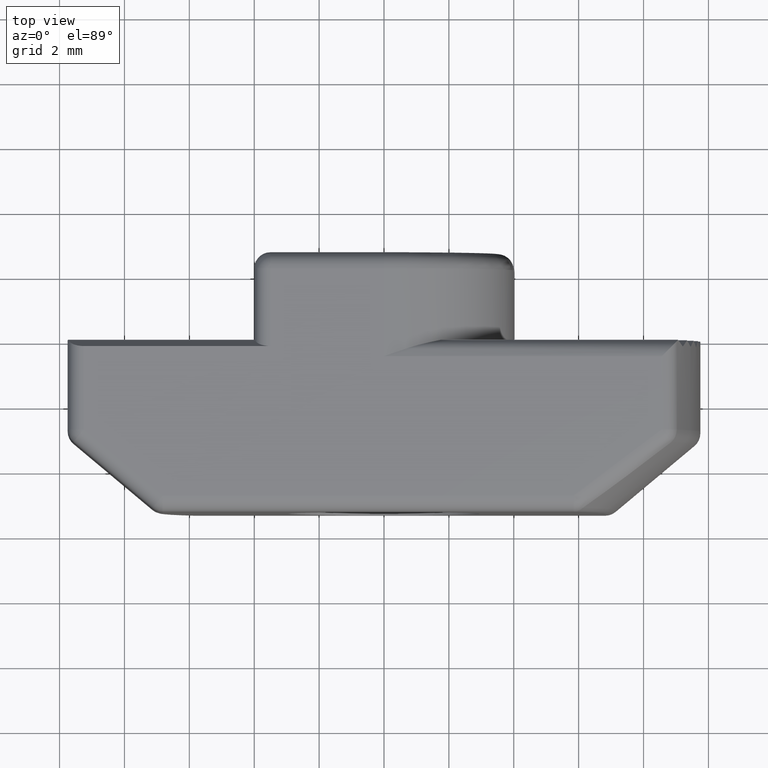
[diagram: clean part render]
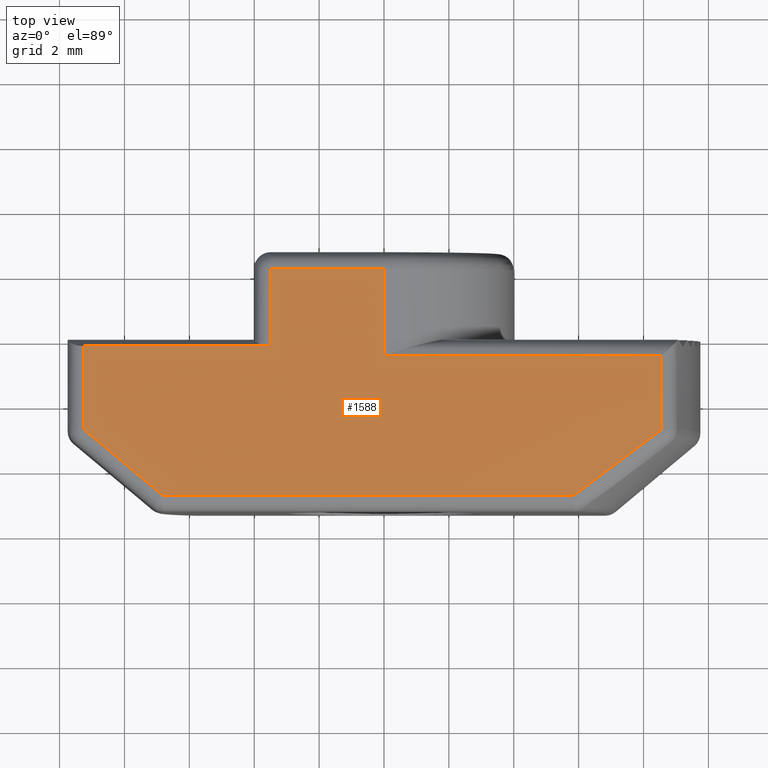
[diagram: same view with one face highlighted and labeled with its STEP entity id]
A machine part, top view. The second image highlights one B-rep face of the part: STEP entity #1588.
In plain terms, the highlighted planar face has unit normal (0, 0, 1).
Its self-contained STEP definition (entity closure, byte-faithful):
#35=B_SPLINE_CURVE_WITH_KNOTS('',3,(#2595,#2596,#2597,#2598),
 .UNSPECIFIED.,.F.,.F.,(4,4),(-0.515121076214052,-0.176231007186257),
 .UNSPECIFIED.);
#109=LINE('',#2509,#239);
#112=LINE('',#2528,#242);
#126=LINE('',#2558,#256);
#127=LINE('',#2587,#257);
#128=LINE('',#2589,#258);
#129=LINE('',#2591,#259);
#130=LINE('',#2593,#260);
#131=LINE('',#2600,#261);
#132=LINE('',#2601,#262);
#239=VECTOR('',#1965,3.5);
#242=VECTOR('',#1990,2.4);
#256=VECTOR('',#2010,2.70901699437495);
#257=VECTOR('',#2033,5.75);
#258=VECTOR('',#2034,2.56635666290024);
#259=VECTOR('',#2035,3.16986493998181);
#260=VECTOR('',#2036,12.6700963714095);
#261=VECTOR('',#2037,2.2573396685253);
#262=VECTOR('',#2038,8.56227189477185);
#353=PLANE('',#1728);
#451=FACE_OUTER_BOUND('',#555,.T.);
#555=EDGE_LOOP('',(#1189,#1190,#1191,#1192,#1193,#1194,#1195,#1196,#1197,
#1198));
#721=VERTEX_POINT('',#2490);
#725=VERTEX_POINT('',#2505);
#729=VERTEX_POINT('',#2525);
#743=VERTEX_POINT('',#2557);
#754=VERTEX_POINT('',#2586);
#755=VERTEX_POINT('',#2588);
#756=VERTEX_POINT('',#2590);
#757=VERTEX_POINT('',#2592);
#758=VERTEX_POINT('',#2594);
#759=VERTEX_POINT('',#2599);
#881=EDGE_CURVE('',#721,#725,#109,.T.);
#890=EDGE_CURVE('',#729,#721,#112,.T.);
#905=EDGE_CURVE('',#725,#743,#126,.T.);
#917=EDGE_CURVE('',#729,#754,#127,.T.);
#918=EDGE_CURVE('',#755,#754,#128,.T.);
#919=EDGE_CURVE('',#756,#755,#129,.T.);
#920=EDGE_CURVE('',#757,#756,#130,.T.);
#921=EDGE_CURVE('',#758,#757,#35,.T.);
#922=EDGE_CURVE('',#759,#758,#131,.T.);
#923=EDGE_CURVE('',#743,#759,#132,.T.);
#1189=ORIENTED_EDGE('',*,*,#881,.F.);
#1190=ORIENTED_EDGE('',*,*,#890,.F.);
#1191=ORIENTED_EDGE('',*,*,#917,.T.);
#1192=ORIENTED_EDGE('',*,*,#918,.F.);
#1193=ORIENTED_EDGE('',*,*,#919,.F.);
#1194=ORIENTED_EDGE('',*,*,#920,.F.);
#1195=ORIENTED_EDGE('',*,*,#921,.F.);
#1196=ORIENTED_EDGE('',*,*,#922,.F.);
#1197=ORIENTED_EDGE('',*,*,#923,.F.);
#1198=ORIENTED_EDGE('',*,*,#905,.F.);
#1588=ADVANCED_FACE('',(#451),#353,.T.);
#1728=AXIS2_PLACEMENT_3D('',#2585,#2031,#2032);
#1965=DIRECTION('',(1.,0.,0.));
#1990=DIRECTION('',(0.,1.,0.));
#2010=DIRECTION('',(0.,-1.,0.));
#2031=DIRECTION('center_axis',(0.,0.,1.));
#2032=DIRECTION('ref_axis',(1.,0.,0.));
#2033=DIRECTION('',(-1.,0.,0.));
#2034=DIRECTION('',(0.,1.,0.));
#2035=DIRECTION('',(-0.767076870152409,0.641555200491106,0.));
#2036=DIRECTION('',(-1.,0.,0.));
#2037=DIRECTION('',(0.,-1.,0.));
#2038=DIRECTION('',(1.,0.,0.));
#2490=CARTESIAN_POINT('',(-3.5,2.2,4.));
#2505=CARTESIAN_POINT('',(5.55111512312578E-16,2.2,4.));
#2509=CARTESIAN_POINT('',(2.,2.2,4.));
#2525=CARTESIAN_POINT('',(-3.5,-0.200000000000001,4.));
#2528=CARTESIAN_POINT('',(-3.5,0.542762680090972,4.));
#2557=CARTESIAN_POINT('',(5.55111512312578E-16,-0.509016994374949,4.));
#2558=CARTESIAN_POINT('',(5.55111512312578E-16,2.7,4.));
#2585=CARTESIAN_POINT('Origin',(0.,-1.61447463981806,4.));
#2586=CARTESIAN_POINT('',(-9.25,-0.200000000000001,4.));
#2587=CARTESIAN_POINT('',(-4.875,-0.200000000000001,4.));
#2588=CARTESIAN_POINT('',(-9.25,-2.76635666290024,4.));
#2589=CARTESIAN_POINT('',(-9.25,-0.807237319909028,4.));
#2590=CARTESIAN_POINT('',(-6.8184699230329,-4.8,4.));
#2591=CARTESIAN_POINT('',(-6.90166250491495,-4.73042074969865,4.));
#2592=CARTESIAN_POINT('',(5.8516264483766,-4.8,4.));
#2593=CARTESIAN_POINT('',(-3.5,-4.8,4.));
#2594=CARTESIAN_POINT('',(8.56227189477185,-2.76635666290024,4.));
#2595=CARTESIAN_POINT('Ctrl Pts',(8.56227189477186,-2.76635666290024,4.));
#2596=CARTESIAN_POINT('Ctrl Pts',(7.66905012195268,-3.45787185373182,4.));
#2597=CARTESIAN_POINT('Ctrl Pts',(6.7693143617693,-4.14131189762828,4.));
#2598=CARTESIAN_POINT('Ctrl Pts',(5.85162644837423,-4.79999999999948,4.));
#2599=CARTESIAN_POINT('',(8.56227189477185,-0.509016994374949,4.));
#2600=CARTESIAN_POINT('',(8.56227189477185,-1.5,4.));
#2601=CARTESIAN_POINT('',(4.875,-0.509016994374949,4.));